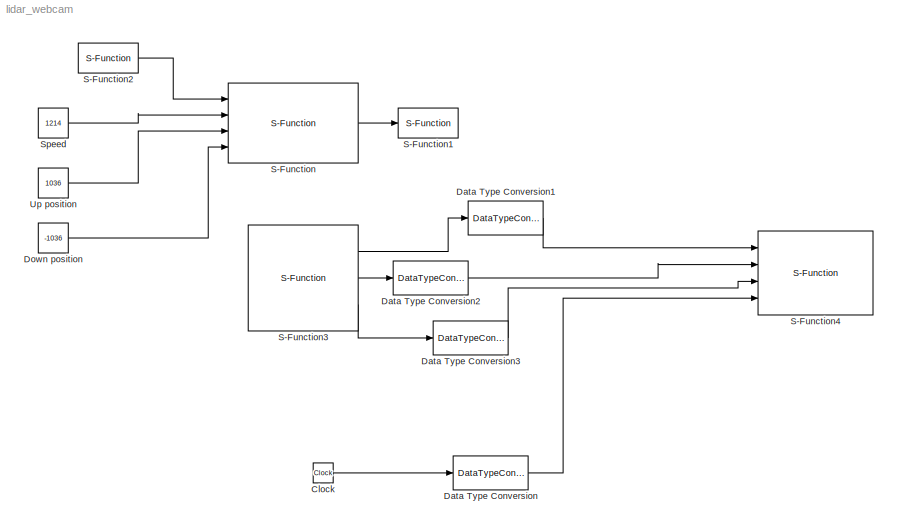
MODEL lidar_webcam
KIND model
BLOCK [Clock] Clock
  Decimation = 10
BLOCK [DataTypeConversion] Data Type Conversion
  OutDataType = fixdt(1, 16)
  OutDataTypeMode = uint16
  OutDataTypeStr = uint16
  OutScaling = 2^0
  RndMeth = Floor
  SaturateOnIntegerOverflow = off
BLOCK [DataTypeConversion] Data Type Conversion1
  OutDataType = fixdt(1, 16)
  OutDataTypeMode = uint8
  OutDataTypeStr = uint8
  OutScaling = 2^0
  RndMeth = Floor
  SaturateOnIntegerOverflow = off
BLOCK [DataTypeConversion] Data Type Conversion2
  OutDataType = fixdt(1, 16)
  OutDataTypeMode = uint8
  OutDataTypeStr = uint8
  OutScaling = 2^0
  RndMeth = Floor
  SaturateOnIntegerOverflow = off
BLOCK [DataTypeConversion] Data Type Conversion3
  OutDataType = fixdt(1, 16)
  OutDataTypeMode = uint8
  OutDataTypeStr = uint8
  OutScaling = 2^0
  RndMeth = Floor
  SaturateOnIntegerOverflow = off
BLOCK [Constant] Down position
  OutDataType = fixdt(1, 16)
  OutScaling = 2^0
  Value = -1036
BLOCK [S-Function] S-Function
  EnableBusSupport = off
  FunctionName = lidar_zero_test9
  Ports = [4, 1]
BLOCK [S-Function] S-Function1
  EnableBusSupport = off
  FunctionName = lidarExport
  Ports = [1]
BLOCK [S-Function] S-Function2
  EnableBusSupport = off
  FunctionName = pot_reader4
  Ports = [0, 1]
BLOCK [S-Function] S-Function3
  EnableBusSupport = off
  FunctionName = WebcamTest
  Ports = [0, 3]
BLOCK [S-Function] S-Function4
  EnableBusSupport = off
  FunctionName = VideoStorage2
  Ports = [4]
BLOCK [Constant] Speed
  OutDataType = fixdt(1, 16)
  OutScaling = 2^0
  Value = 1214
BLOCK [Constant] Up position
  OutDataType = fixdt(1, 16)
  OutScaling = 2^0
  Value = 1036
LINE Clock:1 -> Data Type Conversion:1
LINE Data Type Conversion1:1 -> S-Function4:1
LINE Data Type Conversion2:1 -> S-Function4:2
LINE Data Type Conversion3:1 -> S-Function4:3
LINE Data Type Conversion:1 -> S-Function4:4
LINE Down position:1 -> S-Function:4
LINE S-Function2:1 -> S-Function:1
LINE S-Function3:1 -> Data Type Conversion1:1
LINE S-Function3:2 -> Data Type Conversion2:1
LINE S-Function3:3 -> Data Type Conversion3:1
LINE S-Function:1 -> S-Function1:1
LINE Speed:1 -> S-Function:2
LINE Up position:1 -> S-Function:3
